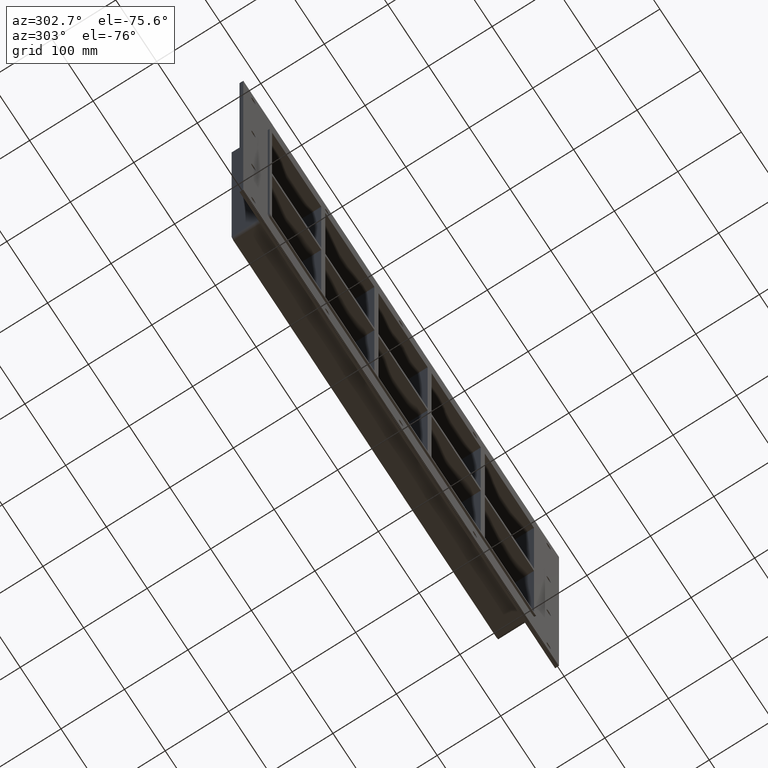
[diagram: clean part render]
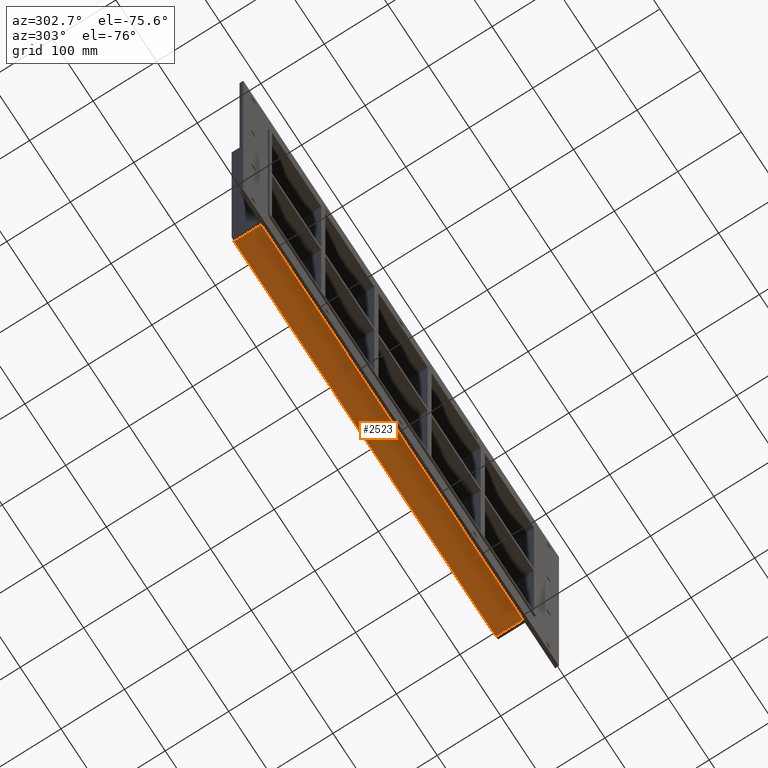
[diagram: same view with one face highlighted and labeled with its STEP entity id]
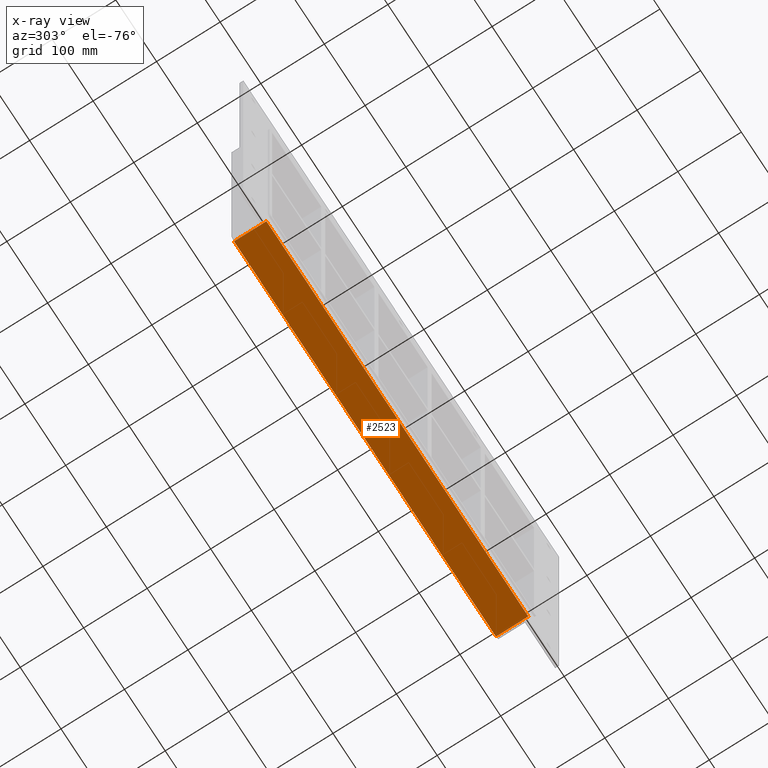
[diagram: x-ray of the same camera — body ghosted, the highlighted face saturated]
A machine part, auxiliary view. The second image highlights one B-rep face of the part: STEP entity #2523.
The next image is the same camera in x-ray: the body ghosted, the highlighted face saturated — about 0% of this face is hidden behind the body in this view.
In plain terms, the highlighted planar face has unit normal (0, 0, -1).
Its self-contained STEP definition (entity closure, byte-faithful):
#1400=CARTESIAN_POINT('',(321.25,57.0,-230.0));
#1401=VERTEX_POINT('',#1400);
#1411=CARTESIAN_POINT('',(-321.24999999999994,57.0,-230.0));
#1412=VERTEX_POINT('',#1411);
#1413=CARTESIAN_POINT('',(321.25,57.0,-230.0));
#1414=DIRECTION('',(-1.0,0.0,0.0));
#1415=VECTOR('',#1414,642.5);
#1416=LINE('',#1413,#1415);
#1417=EDGE_CURVE('',#1401,#1412,#1416,.T.);
#2041=CARTESIAN_POINT('',(-321.25,6.000000000000001,-230.0));
#2042=VERTEX_POINT('',#2041);
#2052=CARTESIAN_POINT('',(321.25,6.000000000000001,-230.0));
#2053=VERTEX_POINT('',#2052);
#2054=CARTESIAN_POINT('',(321.25,6.000000000000001,-230.0));
#2055=DIRECTION('',(-1.0,0.0,0.0));
#2056=VECTOR('',#2055,642.5);
#2057=LINE('',#2054,#2056);
#2058=EDGE_CURVE('',#2053,#2042,#2057,.T.);
#2462=CARTESIAN_POINT('',(321.25,6.000000000000001,-230.0));
#2463=DIRECTION('',(0.0,1.0,0.0));
#2464=VECTOR('',#2463,51.0);
#2465=LINE('',#2462,#2464);
#2466=EDGE_CURVE('',#2053,#1401,#2465,.T.);
#2507=CARTESIAN_POINT('',(327.25,0.0,-230.0));
#2508=DIRECTION('',(0.0,0.0,-1.0));
#2509=DIRECTION('',(-1.0,0.0,0.0));
#2510=AXIS2_PLACEMENT_3D('',#2507,#2508,#2509);
#2511=PLANE('',#2510);
#2512=ORIENTED_EDGE('',*,*,#2058,.T.);
#2513=CARTESIAN_POINT('',(-321.25,57.0,-230.0));
#2514=DIRECTION('',(0.0,-1.0,0.0));
#2515=VECTOR('',#2514,51.0);
#2516=LINE('',#2513,#2515);
#2517=EDGE_CURVE('',#1412,#2042,#2516,.T.);
#2518=ORIENTED_EDGE('',*,*,#2517,.F.);
#2519=ORIENTED_EDGE('',*,*,#1417,.F.);
#2520=ORIENTED_EDGE('',*,*,#2466,.F.);
#2521=EDGE_LOOP('',(#2512,#2518,#2519,#2520));
#2522=FACE_OUTER_BOUND('',#2521,.T.);
#2523=ADVANCED_FACE('',(#2522),#2511,.T.);